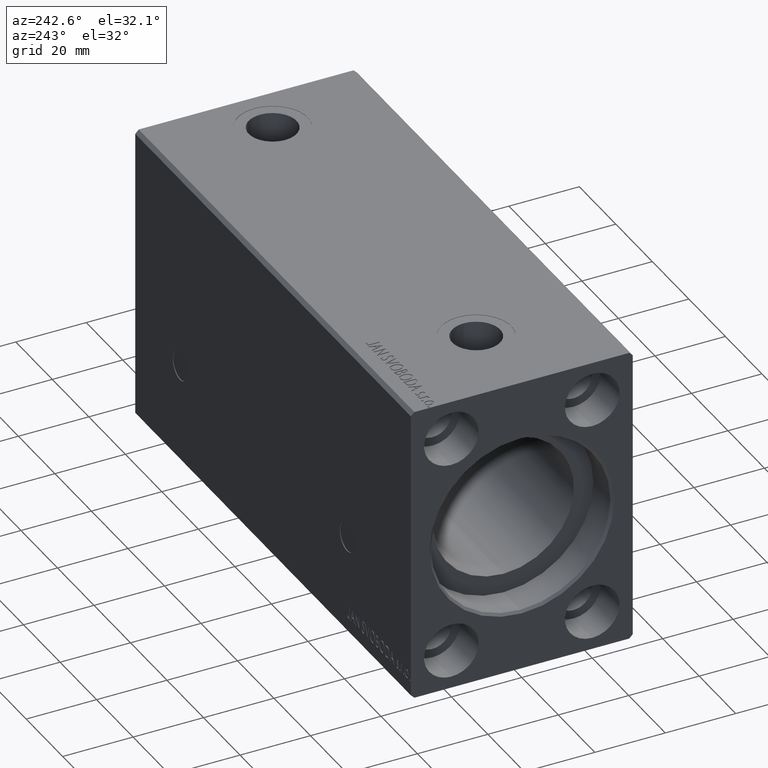
[diagram: clean part render]
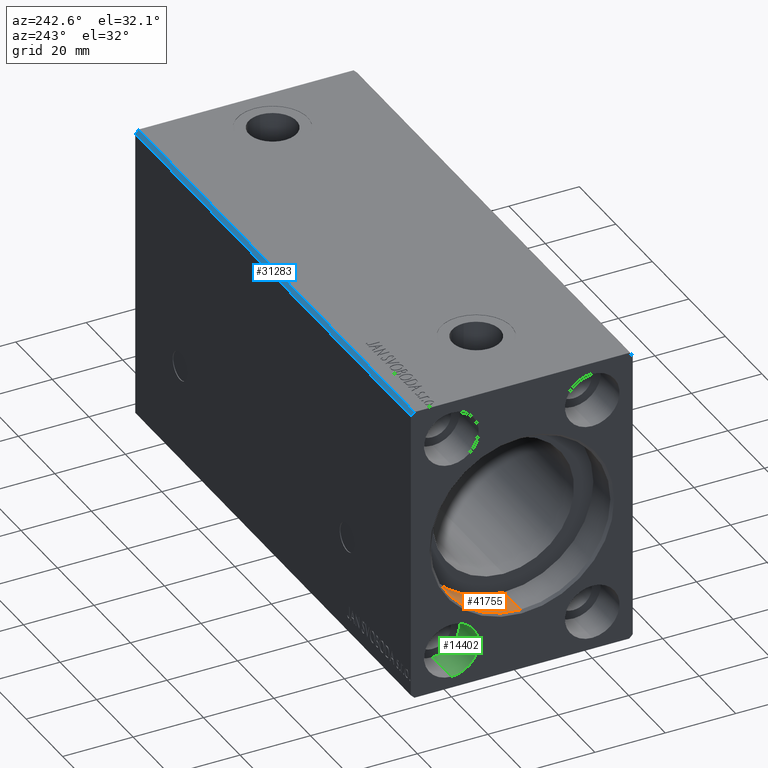
[diagram: same view with three faces highlighted in distinct colors, each labeled with its STEP entity id]
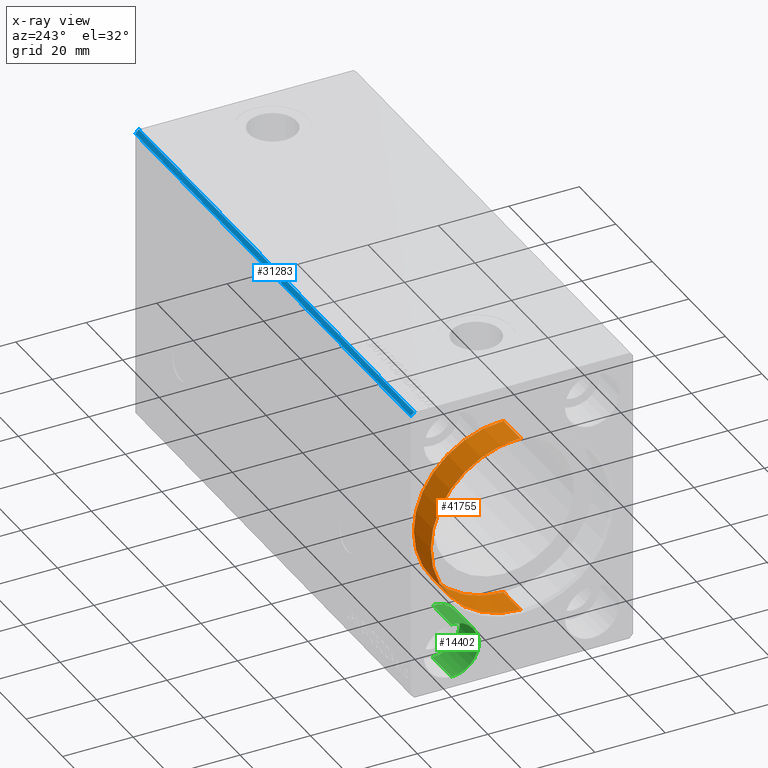
[diagram: x-ray of the same camera — body ghosted, the three highlighted faces saturated]
A machine part, auxiliary view with three faces highlighted in distinct colors.
The next image is the same camera in x-ray (body ghosted, the three faces saturated) — at least one of them is partly hidden behind the body in this view.
Their STEP definitions:

[orange] entity #41755 — the highlighted cylindrical surface (partial cylindrical patch) has radius 25.5 mm, axis along (-1, -0, -0).
#1641 = DIRECTION ( 'NONE',  ( 0.000000000000000000, 0.000000000000000000, 1.000000000000000000 ) ) ;
#3008 = VERTEX_POINT ( 'NONE', #34731 ) ;
#3049 = LINE ( 'NONE', #13135, #24281 ) ;
#6636 = ORIENTED_EDGE ( 'NONE', *, *, #30846, .F. ) ;
#7856 = DIRECTION ( 'NONE',  ( 0.000000000000000000, 0.000000000000000000, 1.000000000000000000 ) ) ;
#8057 = CARTESIAN_POINT ( 'NONE',  ( 10.00000000000000000, 0.000000000000000000, 0.000000000000000000 ) ) ;
#9113 = CARTESIAN_POINT ( 'NONE',  ( 10.00000000000000000, 3.122849337825750222E-15, -25.50000000000000000 ) ) ;
#12137 = ORIENTED_EDGE ( 'NONE', *, *, #42184, .F. ) ;
#13135 = CARTESIAN_POINT ( 'NONE',  ( 10.00000000000000000, 3.122849337825750222E-15, -25.50000000000000000 ) ) ;
#14530 = AXIS2_PLACEMENT_3D ( 'NONE', #24206, #41366, #1641 ) ;
#14723 = DIRECTION ( 'NONE',  ( -1.000000000000000000, -0.000000000000000000, -0.000000000000000000 ) ) ;
#14909 = DIRECTION ( 'NONE',  ( -1.000000000000000000, -0.000000000000000000, -0.000000000000000000 ) ) ;
#16804 = AXIS2_PLACEMENT_3D ( 'NONE', #8057, #14723, #7856 ) ;
#19845 = EDGE_CURVE ( 'NONE', #3008, #20471, #26950, .T. ) ;
#20471 = VERTEX_POINT ( 'NONE', #26953 ) ;
#20690 = ORIENTED_EDGE ( 'NONE', *, *, #19845, .T. ) ;
#21162 = FACE_OUTER_BOUND ( 'NONE', #40822, .T. ) ;
#21406 = VECTOR ( 'NONE', #14909, 1000.000000000000000 ) ;
#22440 = ORIENTED_EDGE ( 'NONE', *, *, #22765, .T. ) ;
#22765 = EDGE_CURVE ( 'NONE', #39468, #3008, #31459, .T. ) ;
#23743 = CARTESIAN_POINT ( 'NONE',  ( 10.00000000000000000, 0.000000000000000000, 25.50000000000000000 ) ) ;
#24206 = CARTESIAN_POINT ( 'NONE',  ( 10.00000000000000000, 0.000000000000000000, 0.000000000000000000 ) ) ;
#24281 = VECTOR ( 'NONE', #35468, 1000.000000000000000 ) ;
#26950 = CIRCLE ( 'NONE', #30945, 25.50000000000000000 ) ;
#26953 = CARTESIAN_POINT ( 'NONE',  ( 0.7000000000000339284, 3.122849337825750222E-15, -25.50000000000000000 ) ) ;
#30846 = EDGE_CURVE ( 'NONE', #39468, #41849, #40587, .T. ) ;
#30945 = AXIS2_PLACEMENT_3D ( 'NONE', #34600, #37205, #41046 ) ;
#31459 = LINE ( 'NONE', #34455, #21406 ) ;
#34455 = CARTESIAN_POINT ( 'NONE',  ( 10.00000000000000000, 0.000000000000000000, 25.50000000000000000 ) ) ;
#34600 = CARTESIAN_POINT ( 'NONE',  ( 0.7000000000000339284, 0.000000000000000000, 0.000000000000000000 ) ) ;
#34731 = CARTESIAN_POINT ( 'NONE',  ( 0.7000000000000339284, 0.000000000000000000, 25.50000000000000000 ) ) ;
#35468 = DIRECTION ( 'NONE',  ( -1.000000000000000000, -0.000000000000000000, -0.000000000000000000 ) ) ;
#37205 = DIRECTION ( 'NONE',  ( -1.000000000000000000, 0.000000000000000000, 0.000000000000000000 ) ) ;
#37294 = CYLINDRICAL_SURFACE ( 'NONE', #16804, 25.50000000000000000 ) ;
#39468 = VERTEX_POINT ( 'NONE', #23743 ) ;
#40587 = CIRCLE ( 'NONE', #14530, 25.50000000000000000 ) ;
#40822 = EDGE_LOOP ( 'NONE', ( #12137, #6636, #22440, #20690 ) ) ;
#41046 = DIRECTION ( 'NONE',  ( 0.000000000000000000, 0.000000000000000000, -1.000000000000000000 ) ) ;
#41366 = DIRECTION ( 'NONE',  ( -1.000000000000000000, 0.000000000000000000, 0.000000000000000000 ) ) ;
#41755 = ADVANCED_FACE ( 'NONE', ( #21162 ), #37294, .F. ) ;
#41849 = VERTEX_POINT ( 'NONE', #9113 ) ;
#42184 = EDGE_CURVE ( 'NONE', #41849, #20471, #3049, .T. ) ;

[blue] entity #31283 — the highlighted planar face has unit normal (0, -0.7071, -0.7071).
#201 = VECTOR ( 'NONE', #4787, 1000.000000000000114 ) ;
#350 = LINE ( 'NONE', #19247, #9845 ) ;
#776 = ORIENTED_EDGE ( 'NONE', *, *, #8506, .F. ) ;
#2381 = CARTESIAN_POINT ( 'NONE',  ( 151.0000000000000000, 31.50000000000001421, 41.49999999999999289 ) ) ;
#3954 = ORIENTED_EDGE ( 'NONE', *, *, #26985, .F. ) ;
#4540 = EDGE_LOOP ( 'NONE', ( #36186, #776, #3954, #42098 ) ) ;
#4787 = DIRECTION ( 'NONE',  ( 0.000000000000000000, -0.7071067811865474617, 0.7071067811865474617 ) ) ;
#7439 = DIRECTION ( 'NONE',  ( 0.000000000000000000, -0.7071067811865474617, 0.7071067811865474617 ) ) ;
#8506 = EDGE_CURVE ( 'NONE', #19995, #24249, #27675, .T. ) ;
#8852 = DIRECTION ( 'NONE',  ( 0.000000000000000000, -0.7071067811865475727, -0.7071067811865475727 ) ) ;
#9845 = VECTOR ( 'NONE', #25916, 1000.000000000000000 ) ;
#12904 = CARTESIAN_POINT ( 'NONE',  ( 0.000000000000000000, 31.50000000000001421, 41.49999999999999289 ) ) ;
#17108 = CARTESIAN_POINT ( 'NONE',  ( 151.0000000000000000, 31.50000000000001421, 41.49999999999999289 ) ) ;
#19247 = CARTESIAN_POINT ( 'NONE',  ( 151.0000000000000000, 31.50000000000001421, 41.49999999999999289 ) ) ;
#19910 = VERTEX_POINT ( 'NONE', #2381 ) ;
#19995 = VERTEX_POINT ( 'NONE', #35436 ) ;
#20332 = LINE ( 'NONE', #17108, #20902 ) ;
#20902 = VECTOR ( 'NONE', #7439, 1000.000000000000114 ) ;
#21313 = LINE ( 'NONE', #31209, #201 ) ;
#23172 = VERTEX_POINT ( 'NONE', #12904 ) ;
#24249 = VERTEX_POINT ( 'NONE', #42509 ) ;
#24986 = FACE_OUTER_BOUND ( 'NONE', #4540, .T. ) ;
#25916 = DIRECTION ( 'NONE',  ( -1.000000000000000000, -0.000000000000000000, -0.000000000000000000 ) ) ;
#26491 = EDGE_CURVE ( 'NONE', #23172, #24249, #21313, .T. ) ;
#26985 = EDGE_CURVE ( 'NONE', #19910, #19995, #20332, .T. ) ;
#27464 = CARTESIAN_POINT ( 'NONE',  ( 151.0000000000000000, 30.50000000000001421, 42.49999999999999289 ) ) ;
#27675 = LINE ( 'NONE', #27464, #40394 ) ;
#28235 = AXIS2_PLACEMENT_3D ( 'NONE', #38288, #8852, #29694 ) ;
#29694 = DIRECTION ( 'NONE',  ( 0.000000000000000000, 0.7071067811865474617, -0.7071067811865474617 ) ) ;
#31209 = CARTESIAN_POINT ( 'NONE',  ( 0.000000000000000000, 31.50000000000001421, 41.49999999999999289 ) ) ;
#31283 = ADVANCED_FACE ( 'NONE', ( #24986 ), #34857, .F. ) ;
#34857 = PLANE ( 'NONE',  #28235 ) ;
#35163 = EDGE_CURVE ( 'NONE', #19910, #23172, #350, .T. ) ;
#35436 = CARTESIAN_POINT ( 'NONE',  ( 151.0000000000000000, 30.50000000000001421, 42.49999999999999289 ) ) ;
#36186 = ORIENTED_EDGE ( 'NONE', *, *, #26491, .T. ) ;
#38183 = DIRECTION ( 'NONE',  ( -1.000000000000000000, -0.000000000000000000, -0.000000000000000000 ) ) ;
#38288 = CARTESIAN_POINT ( 'NONE',  ( 151.0000000000000000, 31.50000000000001421, 41.49999999999999289 ) ) ;
#40394 = VECTOR ( 'NONE', #38183, 1000.000000000000000 ) ;
#42098 = ORIENTED_EDGE ( 'NONE', *, *, #35163, .T. ) ;
#42509 = CARTESIAN_POINT ( 'NONE',  ( 0.000000000000000000, 30.50000000000001421, 42.49999999999999289 ) ) ;

[green] entity #14402 — the highlighted cylindrical surface (edge-blend (fillet) strip) has radius 7.75 mm, axis along (-1, -0, -0).
#112 = VECTOR ( 'NONE', #15979, 1000.000000000000000 ) ;
#2001 = CARTESIAN_POINT ( 'NONE',  ( 0.000000000000000000, 20.00000000000000355, -23.74999999999998579 ) ) ;
#2875 = LINE ( 'NONE', #41753, #112 ) ;
#3261 = VERTEX_POINT ( 'NONE', #41125 ) ;
#3265 = AXIS2_PLACEMENT_3D ( 'NONE', #14667, #21315, #18102 ) ;
#3752 = EDGE_LOOP ( 'NONE', ( #34991, #11934, #28609, #15383 ) ) ;
#4073 = CARTESIAN_POINT ( 'NONE',  ( 10.33000000000000007, 20.00000000000000355, -31.49999999999998579 ) ) ;
#4416 = CARTESIAN_POINT ( 'NONE',  ( 10.33000000000000007, 20.00000000000000355, -23.74999999999998579 ) ) ;
#4420 = EDGE_CURVE ( 'NONE', #3261, #15360, #34804, .T. ) ;
#7753 = CARTESIAN_POINT ( 'NONE',  ( 10.33000000000000007, 20.00000000000000355, -39.24999999999998579 ) ) ;
#8218 = AXIS2_PLACEMENT_3D ( 'NONE', #26853, #17173, #30290 ) ;
#10340 = AXIS2_PLACEMENT_3D ( 'NONE', #4073, #40158, #10940 ) ;
#10940 = DIRECTION ( 'NONE',  ( 0.000000000000000000, 0.000000000000000000, 1.000000000000000000 ) ) ;
#11489 = EDGE_CURVE ( 'NONE', #24608, #31259, #38396, .T. ) ;
#11934 = ORIENTED_EDGE ( 'NONE', *, *, #17875, .T. ) ;
#14402 = ADVANCED_FACE ( 'NONE', ( #37147 ), #36938, .F. ) ;
#14667 = CARTESIAN_POINT ( 'NONE',  ( 10.33000000000000007, 20.00000000000000355, -31.49999999999998579 ) ) ;
#15360 = VERTEX_POINT ( 'NONE', #4416 ) ;
#15383 = ORIENTED_EDGE ( 'NONE', *, *, #15467, .F. ) ;
#15467 = EDGE_CURVE ( 'NONE', #15360, #31259, #2875, .T. ) ;
#15979 = DIRECTION ( 'NONE',  ( -1.000000000000000000, -0.000000000000000000, -0.000000000000000000 ) ) ;
#17173 = DIRECTION ( 'NONE',  ( -1.000000000000000000, 0.000000000000000000, 0.000000000000000000 ) ) ;
#17875 = EDGE_CURVE ( 'NONE', #3261, #24608, #40400, .T. ) ;
#18102 = DIRECTION ( 'NONE',  ( 0.000000000000000000, 0.000000000000000000, 1.000000000000000000 ) ) ;
#21315 = DIRECTION ( 'NONE',  ( -1.000000000000000000, 0.000000000000000000, 0.000000000000000000 ) ) ;
#23771 = CARTESIAN_POINT ( 'NONE',  ( 0.000000000000000000, 20.00000000000000355, -39.24999999999998579 ) ) ;
#24608 = VERTEX_POINT ( 'NONE', #23771 ) ;
#26209 = VECTOR ( 'NONE', #27506, 1000.000000000000000 ) ;
#26853 = CARTESIAN_POINT ( 'NONE',  ( 0.000000000000000000, 20.00000000000000355, -31.49999999999998579 ) ) ;
#27506 = DIRECTION ( 'NONE',  ( -1.000000000000000000, -0.000000000000000000, -0.000000000000000000 ) ) ;
#28609 = ORIENTED_EDGE ( 'NONE', *, *, #11489, .T. ) ;
#30290 = DIRECTION ( 'NONE',  ( 0.000000000000000000, 0.000000000000000000, 1.000000000000000000 ) ) ;
#31259 = VERTEX_POINT ( 'NONE', #2001 ) ;
#34804 = CIRCLE ( 'NONE', #3265, 7.750000000000000000 ) ;
#34991 = ORIENTED_EDGE ( 'NONE', *, *, #4420, .F. ) ;
#36938 = CYLINDRICAL_SURFACE ( 'NONE', #10340, 7.750000000000000000 ) ;
#37147 = FACE_OUTER_BOUND ( 'NONE', #3752, .T. ) ;
#38396 = CIRCLE ( 'NONE', #8218, 7.750000000000000000 ) ;
#40158 = DIRECTION ( 'NONE',  ( -1.000000000000000000, -0.000000000000000000, -0.000000000000000000 ) ) ;
#40400 = LINE ( 'NONE', #7753, #26209 ) ;
#41125 = CARTESIAN_POINT ( 'NONE',  ( 10.33000000000000007, 20.00000000000000355, -39.24999999999998579 ) ) ;
#41753 = CARTESIAN_POINT ( 'NONE',  ( 10.33000000000000007, 20.00000000000000355, -23.74999999999998579 ) ) ;